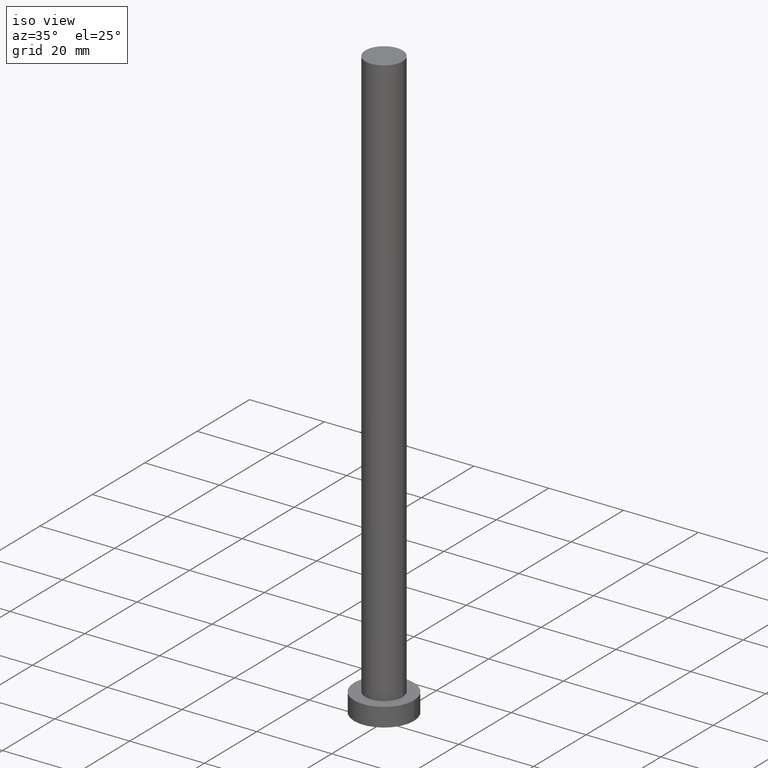
[diagram: clean part render]
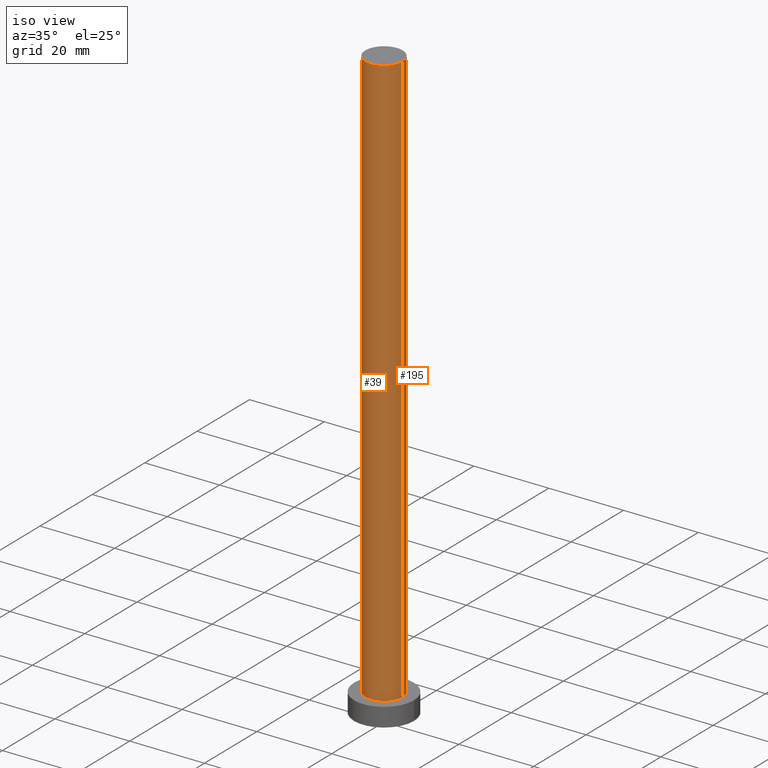
[diagram: same view with one multi-face feature highlighted, each face labeled with its STEP entity id]
A machine part, iso view. The highlighted faces form ONE feature: a constant-radius fillet chain: 2 tangent blend faces with common blend radius 5 mm. The faces share edges in the B-rep.
Their STEP definitions:
[1] entity #39 (Cylinder):
#5 = VERTEX_POINT ( 'NONE', #51 ) ;
#13 = CARTESIAN_POINT ( 'NONE',  ( 0.000000000000000000, 0.000000000000000000, 158.5999999999999943 ) ) ;
#15 = AXIS2_PLACEMENT_3D ( 'NONE', #13, #136, #212 ) ;
#17 = CARTESIAN_POINT ( 'NONE',  ( -5.000000000000000000, 0.000000000000000000, 158.5999999999999943 ) ) ;
#19 = CIRCLE ( 'NONE', #230, 5.000000000000000000 ) ;
#29 = ORIENTED_EDGE ( 'NONE', *, *, #153, .F. ) ;
#30 = VERTEX_POINT ( 'NONE', #157 ) ;
#34 = CYLINDRICAL_SURFACE ( 'NONE', #110, 5.000000000000000000 ) ;
#39 = ADVANCED_FACE ( 'NONE', ( #244 ), #34, .T. ) ;
#42 = CARTESIAN_POINT ( 'NONE',  ( 5.000000000000000000, 6.123233995736766282E-16, 158.5999999999999943 ) ) ;
#51 = CARTESIAN_POINT ( 'NONE',  ( -5.000000000000000000, 0.000000000000000000, 5.000000000000000000 ) ) ;
#52 = CARTESIAN_POINT ( 'NONE',  ( 5.000000000000000000, 6.123233995736766282E-16, 158.5999999999999943 ) ) ;
#55 = VERTEX_POINT ( 'NONE', #52 ) ;
#73 = CARTESIAN_POINT ( 'NONE',  ( 0.000000000000000000, 0.000000000000000000, 5.000000000000000000 ) ) ;
#85 = EDGE_CURVE ( 'NONE', #5, #30, #19, .T. ) ;
#89 = CIRCLE ( 'NONE', #15, 5.000000000000000000 ) ;
#110 = AXIS2_PLACEMENT_3D ( 'NONE', #243, #224, #111 ) ;
#111 = DIRECTION ( 'NONE',  ( -1.000000000000000000, 0.000000000000000000, 0.000000000000000000 ) ) ;
#112 = LINE ( 'NONE', #17, #125 ) ;
#125 = VECTOR ( 'NONE', #229, 1000.000000000000000 ) ;
#131 = EDGE_LOOP ( 'NONE', ( #29, #223, #189, #228 ) ) ;
#136 = DIRECTION ( 'NONE',  ( 0.000000000000000000, 0.000000000000000000, 1.000000000000000000 ) ) ;
#146 = VECTOR ( 'NONE', #197, 1000.000000000000000 ) ;
#152 = DIRECTION ( 'NONE',  ( 0.000000000000000000, 0.000000000000000000, 1.000000000000000000 ) ) ;
#153 = EDGE_CURVE ( 'NONE', #55, #30, #215, .T. ) ;
#157 = CARTESIAN_POINT ( 'NONE',  ( 5.000000000000000000, 6.123233995736766282E-16, 5.000000000000000000 ) ) ;
#158 = EDGE_CURVE ( 'NONE', #169, #5, #112, .T. ) ;
#160 = EDGE_CURVE ( 'NONE', #169, #55, #89, .T. ) ;
#163 = CARTESIAN_POINT ( 'NONE',  ( -5.000000000000000000, 0.000000000000000000, 158.5999999999999943 ) ) ;
#169 = VERTEX_POINT ( 'NONE', #163 ) ;
#189 = ORIENTED_EDGE ( 'NONE', *, *, #158, .T. ) ;
#197 = DIRECTION ( 'NONE',  ( -0.000000000000000000, -0.000000000000000000, -1.000000000000000000 ) ) ;
#207 = DIRECTION ( 'NONE',  ( 1.000000000000000000, 0.000000000000000000, 0.000000000000000000 ) ) ;
#212 = DIRECTION ( 'NONE',  ( 1.000000000000000000, 0.000000000000000000, 0.000000000000000000 ) ) ;
#215 = LINE ( 'NONE', #42, #146 ) ;
#223 = ORIENTED_EDGE ( 'NONE', *, *, #160, .F. ) ;
#224 = DIRECTION ( 'NONE',  ( -0.000000000000000000, -0.000000000000000000, -1.000000000000000000 ) ) ;
#228 = ORIENTED_EDGE ( 'NONE', *, *, #85, .T. ) ;
#229 = DIRECTION ( 'NONE',  ( -0.000000000000000000, -0.000000000000000000, -1.000000000000000000 ) ) ;
#230 = AXIS2_PLACEMENT_3D ( 'NONE', #73, #152, #207 ) ;
#243 = CARTESIAN_POINT ( 'NONE',  ( 0.000000000000000000, 0.000000000000000000, 158.5999999999999943 ) ) ;
#244 = FACE_OUTER_BOUND ( 'NONE', #131, .T. ) ;
[2] entity #195 (Cylinder):
#5 = VERTEX_POINT ( 'NONE', #51 ) ;
#17 = CARTESIAN_POINT ( 'NONE',  ( -5.000000000000000000, 0.000000000000000000, 158.5999999999999943 ) ) ;
#30 = VERTEX_POINT ( 'NONE', #157 ) ;
#37 = DIRECTION ( 'NONE',  ( -0.000000000000000000, -0.000000000000000000, -1.000000000000000000 ) ) ;
#42 = CARTESIAN_POINT ( 'NONE',  ( 5.000000000000000000, 6.123233995736766282E-16, 158.5999999999999943 ) ) ;
#51 = CARTESIAN_POINT ( 'NONE',  ( -5.000000000000000000, 0.000000000000000000, 5.000000000000000000 ) ) ;
#52 = CARTESIAN_POINT ( 'NONE',  ( 5.000000000000000000, 6.123233995736766282E-16, 158.5999999999999943 ) ) ;
#53 = EDGE_LOOP ( 'NONE', ( #204, #203, #188, #104 ) ) ;
#55 = VERTEX_POINT ( 'NONE', #52 ) ;
#58 = CARTESIAN_POINT ( 'NONE',  ( 0.000000000000000000, 0.000000000000000000, 5.000000000000000000 ) ) ;
#59 = DIRECTION ( 'NONE',  ( -1.000000000000000000, 0.000000000000000000, 0.000000000000000000 ) ) ;
#79 = CIRCLE ( 'NONE', #225, 5.000000000000000000 ) ;
#104 = ORIENTED_EDGE ( 'NONE', *, *, #158, .F. ) ;
#105 = AXIS2_PLACEMENT_3D ( 'NONE', #159, #213, #134 ) ;
#112 = LINE ( 'NONE', #17, #125 ) ;
#115 = EDGE_CURVE ( 'NONE', #30, #5, #79, .T. ) ;
#125 = VECTOR ( 'NONE', #229, 1000.000000000000000 ) ;
#134 = DIRECTION ( 'NONE',  ( 1.000000000000000000, 0.000000000000000000, 0.000000000000000000 ) ) ;
#135 = AXIS2_PLACEMENT_3D ( 'NONE', #235, #37, #59 ) ;
#146 = VECTOR ( 'NONE', #197, 1000.000000000000000 ) ;
#149 = EDGE_CURVE ( 'NONE', #55, #169, #217, .T. ) ;
#153 = EDGE_CURVE ( 'NONE', #55, #30, #215, .T. ) ;
#157 = CARTESIAN_POINT ( 'NONE',  ( 5.000000000000000000, 6.123233995736766282E-16, 5.000000000000000000 ) ) ;
#158 = EDGE_CURVE ( 'NONE', #169, #5, #112, .T. ) ;
#159 = CARTESIAN_POINT ( 'NONE',  ( 0.000000000000000000, 0.000000000000000000, 158.5999999999999943 ) ) ;
#161 = FACE_OUTER_BOUND ( 'NONE', #53, .T. ) ;
#163 = CARTESIAN_POINT ( 'NONE',  ( -5.000000000000000000, 0.000000000000000000, 158.5999999999999943 ) ) ;
#169 = VERTEX_POINT ( 'NONE', #163 ) ;
#177 = DIRECTION ( 'NONE',  ( 0.000000000000000000, 0.000000000000000000, 1.000000000000000000 ) ) ;
#188 = ORIENTED_EDGE ( 'NONE', *, *, #115, .T. ) ;
#195 = ADVANCED_FACE ( 'NONE', ( #161 ), #250, .T. ) ;
#197 = DIRECTION ( 'NONE',  ( -0.000000000000000000, -0.000000000000000000, -1.000000000000000000 ) ) ;
#203 = ORIENTED_EDGE ( 'NONE', *, *, #153, .T. ) ;
#204 = ORIENTED_EDGE ( 'NONE', *, *, #149, .F. ) ;
#213 = DIRECTION ( 'NONE',  ( 0.000000000000000000, 0.000000000000000000, 1.000000000000000000 ) ) ;
#215 = LINE ( 'NONE', #42, #146 ) ;
#217 = CIRCLE ( 'NONE', #105, 5.000000000000000000 ) ;
#225 = AXIS2_PLACEMENT_3D ( 'NONE', #58, #177, #251 ) ;
#229 = DIRECTION ( 'NONE',  ( -0.000000000000000000, -0.000000000000000000, -1.000000000000000000 ) ) ;
#235 = CARTESIAN_POINT ( 'NONE',  ( 0.000000000000000000, 0.000000000000000000, 158.5999999999999943 ) ) ;
#250 = CYLINDRICAL_SURFACE ( 'NONE', #135, 5.000000000000000000 ) ;
#251 = DIRECTION ( 'NONE',  ( 1.000000000000000000, 0.000000000000000000, 0.000000000000000000 ) ) ;